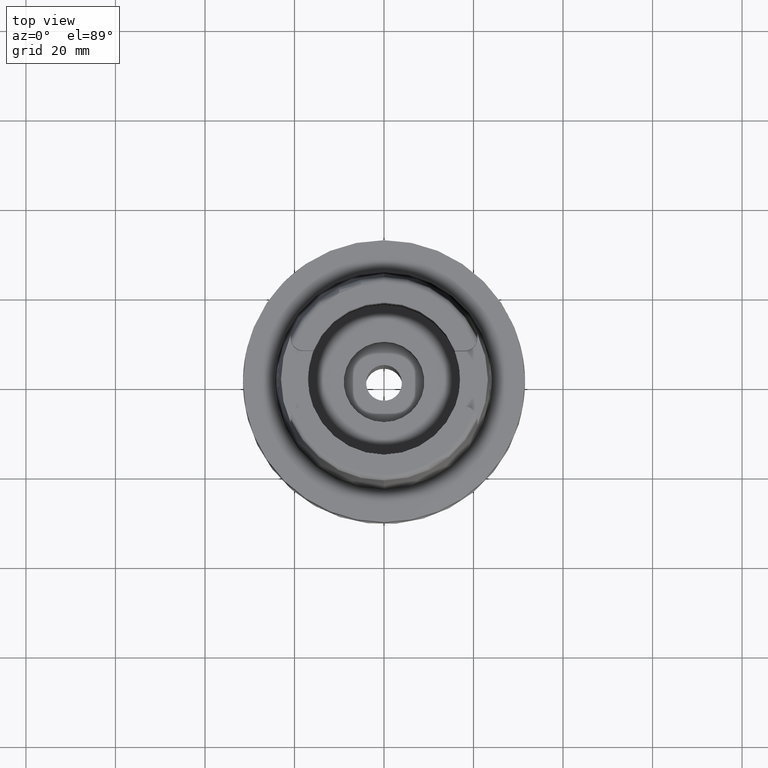
[diagram: clean part render]
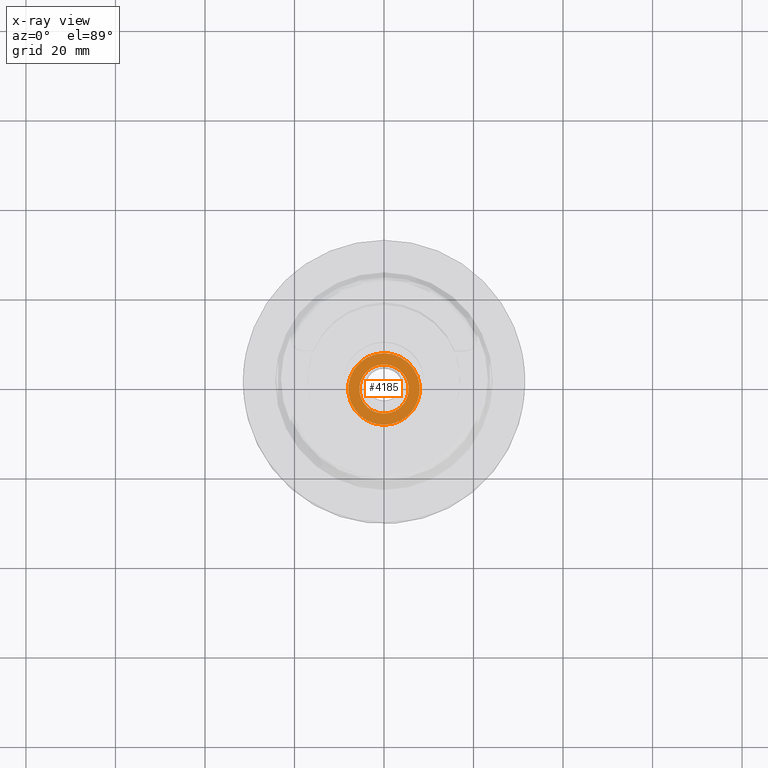
[diagram: x-ray — body ghosted, one internal face saturated and labeled with its STEP entity id]
A machine part, top view, then the same camera in x-ray: the body is ghosted and one INTERNAL B-rep face — a face not visible from any outside direction — is saturated and labeled: STEP entity #4185.
In plain terms, the highlighted planar face has unit normal (0, 0, -1).
Its self-contained STEP definition (entity closure, byte-faithful):
#152 = ORIENTED_EDGE ( 'NONE', *, *, #2381, .F. ) ;
#569 = EDGE_LOOP ( 'NONE', ( #4592, #5713 ) ) ;
#702 = AXIS2_PLACEMENT_3D ( 'NONE', #3656, #5544, #1308 ) ;
#740 = EDGE_LOOP ( 'NONE', ( #152, #3854 ) ) ;
#989 = DIRECTION ( 'NONE',  ( 0.0000000000000000000, 0.0000000000000000000, 1.000000000000000000 ) ) ;
#1181 = CARTESIAN_POINT ( 'NONE',  ( 0.0000000000000000000, -8.000000000000000000, -7.799999999999999822 ) ) ;
#1281 = VERTEX_POINT ( 'NONE', #4984 ) ;
#1308 = DIRECTION ( 'NONE',  ( 0.0000000000000000000, 1.000000000000000000, 0.0000000000000000000 ) ) ;
#1380 = VERTEX_POINT ( 'NONE', #2204 ) ;
#1667 = DIRECTION ( 'NONE',  ( 0.0000000000000000000, 0.0000000000000000000, -1.000000000000000000 ) ) ;
#1794 = AXIS2_PLACEMENT_3D ( 'NONE', #5727, #989, #2850 ) ;
#1822 = VERTEX_POINT ( 'NONE', #1181 ) ;
#2204 = CARTESIAN_POINT ( 'NONE',  ( 0.0000000000000000000, 8.000000000000000000, -7.799999999999999822 ) ) ;
#2381 = EDGE_CURVE ( 'NONE', #5742, #1281, #4249, .T. ) ;
#2608 = EDGE_CURVE ( 'NONE', #1281, #5742, #4067, .T. ) ;
#2850 = DIRECTION ( 'NONE',  ( 0.0000000000000000000, -1.000000000000000000, 0.0000000000000000000 ) ) ;
#2888 = DIRECTION ( 'NONE',  ( 0.0000000000000000000, -1.000000000000000000, 0.0000000000000000000 ) ) ;
#2935 = EDGE_CURVE ( 'NONE', #1380, #1822, #4556, .T. ) ;
#3025 = FACE_BOUND ( 'NONE', #740, .T. ) ;
#3033 = CARTESIAN_POINT ( 'NONE',  ( 0.0000000000000000000, 0.0000000000000000000, -7.799999999999999822 ) ) ;
#3316 = CIRCLE ( 'NONE', #4593, 8.000000000000000000 ) ;
#3529 = CARTESIAN_POINT ( 'NONE',  ( 0.0000000000000000000, 5.500000000000000000, -7.799999999999999822 ) ) ;
#3656 = CARTESIAN_POINT ( 'NONE',  ( 0.0000000000000000000, 0.0000000000000000000, -7.799999999999999822 ) ) ;
#3854 = ORIENTED_EDGE ( 'NONE', *, *, #2608, .F. ) ;
#3878 = AXIS2_PLACEMENT_3D ( 'NONE', #3033, #4916, #4446 ) ;
#3955 = CARTESIAN_POINT ( 'NONE',  ( 0.0000000000000000000, 0.0000000000000000000, -7.799999999999999822 ) ) ;
#4067 = CIRCLE ( 'NONE', #1794, 5.500000000000000000 ) ;
#4185 = ADVANCED_FACE ( 'NONE', ( #5897, #3025 ), #4905, .F. ) ;
#4249 = CIRCLE ( 'NONE', #702, 5.500000000000000000 ) ;
#4297 = EDGE_CURVE ( 'NONE', #1822, #1380, #3316, .T. ) ;
#4446 = DIRECTION ( 'NONE',  ( 0.0000000000000000000, 1.000000000000000000, 0.0000000000000000000 ) ) ;
#4556 = CIRCLE ( 'NONE', #3878, 8.000000000000000000 ) ;
#4592 = ORIENTED_EDGE ( 'NONE', *, *, #2935, .F. ) ;
#4593 = AXIS2_PLACEMENT_3D ( 'NONE', #6101, #5209, #2888 ) ;
#4905 = PLANE ( 'NONE',  #5985 ) ;
#4916 = DIRECTION ( 'NONE',  ( 0.0000000000000000000, 0.0000000000000000000, -1.000000000000000000 ) ) ;
#4984 = CARTESIAN_POINT ( 'NONE',  ( 0.0000000000000000000, -5.500000000000000000, -7.799999999999999822 ) ) ;
#5209 = DIRECTION ( 'NONE',  ( 0.0000000000000000000, 0.0000000000000000000, -1.000000000000000000 ) ) ;
#5317 = DIRECTION ( 'NONE',  ( 0.0000000000000000000, -1.000000000000000000, 0.0000000000000000000 ) ) ;
#5544 = DIRECTION ( 'NONE',  ( 0.0000000000000000000, 0.0000000000000000000, 1.000000000000000000 ) ) ;
#5713 = ORIENTED_EDGE ( 'NONE', *, *, #4297, .F. ) ;
#5727 = CARTESIAN_POINT ( 'NONE',  ( 0.0000000000000000000, 0.0000000000000000000, -7.799999999999999822 ) ) ;
#5742 = VERTEX_POINT ( 'NONE', #3529 ) ;
#5897 = FACE_OUTER_BOUND ( 'NONE', #569, .T. ) ;
#5985 = AXIS2_PLACEMENT_3D ( 'NONE', #3955, #1667, #5317 ) ;
#6101 = CARTESIAN_POINT ( 'NONE',  ( 0.0000000000000000000, 0.0000000000000000000, -7.799999999999999822 ) ) ;